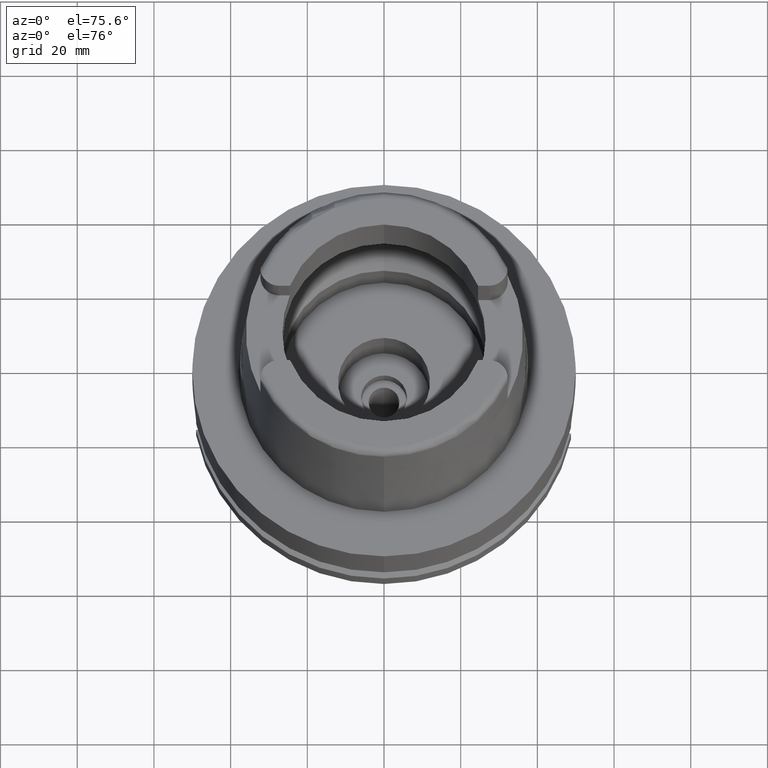
[diagram: clean part render]
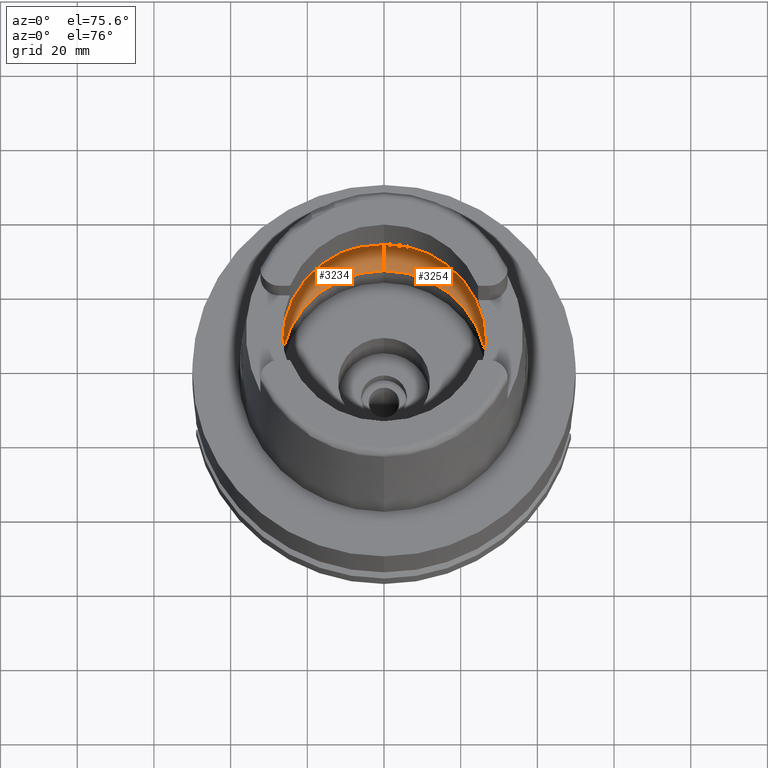
[diagram: same view with one multi-face feature highlighted, each face labeled with its STEP entity id]
A machine part, auxiliary view. The highlighted faces form ONE feature: a constant-radius fillet chain: 2 tangent blend faces with common blend radius 12 mm. The faces share edges in the B-rep.
Their STEP definitions:
[1] entity #3254 (Torus):
#664=CARTESIAN_POINT('',(0.E0,-1.95E1,9.496624327026E0));
#665=DIRECTION('',(-1.E0,0.E0,0.E0));
#666=DIRECTION('',(0.E0,-6.166666666667E-1,-7.872243785746E-1));
#667=AXIS2_PLACEMENT_3D('',#664,#665,#666);
#680=CARTESIAN_POINT('',(3.148971910754E1,0.E0,9.E0));
#681=CARTESIAN_POINT('',(3.148971910754E1,-2.740581905778E-1,9.E0));
#682=CARTESIAN_POINT('',(3.148416870589E1,-8.215767162346E-1,9.037592982540E0));
#683=CARTESIAN_POINT('',(3.145842593441E1,-1.626281815418E0,9.205228751563E0));
#684=CARTESIAN_POINT('',(3.142817044753E1,-2.140719982791E0,9.388291400974E0));
#685=CARTESIAN_POINT('',(3.140918884336E1,-2.390158196044E0,9.496624327026E0));
#690=CARTESIAN_POINT('',(0.E0,0.E0,9.496624327026E0));
#691=DIRECTION('',(0.E0,0.E0,-1.E0));
#692=DIRECTION('',(9.971171061384E-1,-7.587803796965E-2,0.E0));
#693=AXIS2_PLACEMENT_3D('',#690,#691,#692);
#698=CARTESIAN_POINT('',(0.E0,0.E0,4.993178413033E-2));
#699=DIRECTION('',(0.E0,0.E0,1.E0));
#700=DIRECTION('',(0.E0,-1.E0,0.E0));
#701=AXIS2_PLACEMENT_3D('',#698,#699,#700);
#706=CARTESIAN_POINT('',(0.E0,1.95E1,9.496624327026E0));
#707=DIRECTION('',(1.E0,0.E0,0.E0));
#708=DIRECTION('',(0.E0,6.166666666667E-1,-7.872243785746E-1));
#709=AXIS2_PLACEMENT_3D('',#706,#707,#708);
#714=CARTESIAN_POINT('',(0.E0,0.E0,9.496624327026E0));
#715=DIRECTION('',(0.E0,0.E0,-1.E0));
#716=DIRECTION('',(0.E0,1.E0,0.E0));
#717=AXIS2_PLACEMENT_3D('',#714,#715,#716);
#722=CARTESIAN_POINT('',(3.140918884336E1,2.390158196044E0,9.496624327026E0));
#723=CARTESIAN_POINT('',(3.142817017765E1,2.140723529313E0,9.388292941256E0));
#724=CARTESIAN_POINT('',(3.145842559873E1,1.626290467951E0,9.205230879486E0));
#725=CARTESIAN_POINT('',(3.148416885824E1,8.215724231083E-1,9.037592008852E0));
#726=CARTESIAN_POINT('',(3.148971910754E1,2.740562451419E-1,9.E0));
#727=CARTESIAN_POINT('',(3.148971910754E1,0.E0,9.E0));
#739=CARTESIAN_POINT('',(3.140918884336E1,-2.390158196044E0,9.496624327026E0));
#770=CARTESIAN_POINT('',(3.140918884336E1,2.390158196044E0,9.496624327026E0));
#2549=CARTESIAN_POINT('',(0.E0,-3.15E1,9.496624327026E0));
#2550=VERTEX_POINT('',#2549);
#2551=CARTESIAN_POINT('',(0.E0,3.15E1,9.496624327026E0));
#2552=VERTEX_POINT('',#2551);
#2557=VERTEX_POINT('',#739);
#2559=VERTEX_POINT('',#680);
#2560=VERTEX_POINT('',#770);
#2561=CARTESIAN_POINT('',(0.E0,2.69E1,4.993178413034E-2));
#2562=VERTEX_POINT('',#2561);
#2563=CARTESIAN_POINT('',(0.E0,-2.69E1,4.993178413032E-2));
#2564=VERTEX_POINT('',#2563);
#3235=CARTESIAN_POINT('',(0.E0,0.E0,9.496624327026E0));
#3236=DIRECTION('',(0.E0,0.E0,1.E0));
#3237=DIRECTION('',(0.E0,1.E0,0.E0));
#3238=AXIS2_PLACEMENT_3D('',#3235,#3236,#3237);
#3239=TOROIDAL_SURFACE('',#3238,1.95E1,1.2E1);
#3241=ORIENTED_EDGE('',*,*,#3240,.T.);
#3243=ORIENTED_EDGE('',*,*,#3242,.T.);
#3244=ORIENTED_EDGE('',*,*,#3229,.F.);
#3246=ORIENTED_EDGE('',*,*,#3245,.T.);
#3247=ORIENTED_EDGE('',*,*,#3225,.T.);
#3249=ORIENTED_EDGE('',*,*,#3248,.T.);
#3251=ORIENTED_EDGE('',*,*,#3250,.T.);
#3252=EDGE_LOOP('',(#3241,#3243,#3244,#3246,#3247,#3249,#3251));
#3253=FACE_OUTER_BOUND('',#3252,.F.);
#668=CIRCLE('',#667,1.2E1);
#686=B_SPLINE_CURVE_WITH_KNOTS('',3,(#680,#681,#682,#683,#684,#685),
.UNSPECIFIED.,.F.,.F.,(4,1,1,4),(0.E0,3.333333333333E-1,6.666666666667E-1,1.E0),
.UNSPECIFIED.);
#694=CIRCLE('',#693,3.15E1);
#702=CIRCLE('',#701,2.69E1);
#710=CIRCLE('',#709,1.2E1);
#718=CIRCLE('',#717,3.15E1);
#728=B_SPLINE_CURVE_WITH_KNOTS('',3,(#722,#723,#724,#725,#726,#727),
.UNSPECIFIED.,.F.,.F.,(4,1,1,4),(0.E0,3.333333333333E-1,6.666666666667E-1,1.E0),
.UNSPECIFIED.);
#3225=EDGE_CURVE('',#2562,#2552,#710,.T.);
#3229=EDGE_CURVE('',#2564,#2550,#668,.T.);
#3240=EDGE_CURVE('',#2559,#2557,#686,.T.);
#3242=EDGE_CURVE('',#2557,#2550,#694,.T.);
#3245=EDGE_CURVE('',#2564,#2562,#702,.T.);
#3248=EDGE_CURVE('',#2552,#2560,#718,.T.);
#3250=EDGE_CURVE('',#2560,#2559,#728,.T.);
#3254=ADVANCED_FACE('',(#3253),#3239,.F.);
[2] entity #3234 (Torus):
#584=CARTESIAN_POINT('',(-3.140918884336E1,-2.390158196044E0,9.496624327026E0));
#628=CARTESIAN_POINT('',(-3.140918884336E1,-2.390158196044E0,9.496624327026E0));
#629=CARTESIAN_POINT('',(-3.142817048744E1,-2.140719458354E0,9.388291173208E0));
#630=CARTESIAN_POINT('',(-3.145842599790E1,-1.626280530192E0,9.205228353213E0));
#631=CARTESIAN_POINT('',(-3.148416873543E1,-8.215750979197E-1,
9.037592781645E0));
#632=CARTESIAN_POINT('',(-3.148971910754E1,-2.740574929314E-1,9.E0));
#633=CARTESIAN_POINT('',(-3.148971910754E1,0.E0,9.E0));
#638=CARTESIAN_POINT('',(-3.148971910754E1,0.E0,9.E0));
#639=CARTESIAN_POINT('',(-3.148971910754E1,2.740569386345E-1,9.E0));
#640=CARTESIAN_POINT('',(-3.148416882895E1,8.215740320397E-1,9.037592208076E0));
#641=CARTESIAN_POINT('',(-3.145842553504E1,1.626291759550E0,9.205231279179E0));
#642=CARTESIAN_POINT('',(-3.142817013754E1,2.140724056368E0,9.388293170160E0));
#643=CARTESIAN_POINT('',(-3.140918884336E1,2.390158196044E0,9.496624327026E0));
#648=CARTESIAN_POINT('',(0.E0,0.E0,9.496624327026E0));
#649=DIRECTION('',(0.E0,0.E0,-1.E0));
#650=DIRECTION('',(-9.971171061384E-1,7.587803796965E-2,0.E0));
#651=AXIS2_PLACEMENT_3D('',#648,#649,#650);
#656=CARTESIAN_POINT('',(0.E0,0.E0,4.993178413032E-2));
#657=DIRECTION('',(0.E0,0.E0,1.E0));
#658=DIRECTION('',(0.E0,1.E0,0.E0));
#659=AXIS2_PLACEMENT_3D('',#656,#657,#658);
#664=CARTESIAN_POINT('',(0.E0,-1.95E1,9.496624327026E0));
#665=DIRECTION('',(-1.E0,0.E0,0.E0));
#666=DIRECTION('',(0.E0,-6.166666666667E-1,-7.872243785746E-1));
#667=AXIS2_PLACEMENT_3D('',#664,#665,#666);
#672=CARTESIAN_POINT('',(0.E0,0.E0,9.496624327026E0));
#673=DIRECTION('',(0.E0,0.E0,-1.E0));
#674=DIRECTION('',(0.E0,-1.E0,0.E0));
#675=AXIS2_PLACEMENT_3D('',#672,#673,#674);
#706=CARTESIAN_POINT('',(0.E0,1.95E1,9.496624327026E0));
#707=DIRECTION('',(1.E0,0.E0,0.E0));
#708=DIRECTION('',(0.E0,6.166666666667E-1,-7.872243785746E-1));
#709=AXIS2_PLACEMENT_3D('',#706,#707,#708);
#2548=VERTEX_POINT('',#584);
#2549=CARTESIAN_POINT('',(0.E0,-3.15E1,9.496624327026E0));
#2550=VERTEX_POINT('',#2549);
#2551=CARTESIAN_POINT('',(0.E0,3.15E1,9.496624327026E0));
#2552=VERTEX_POINT('',#2551);
#2553=CARTESIAN_POINT('',(-3.140918884336E1,2.390158196044E0,9.496624327026E0));
#2554=VERTEX_POINT('',#2553);
#2555=CARTESIAN_POINT('',(-3.148971910754E1,0.E0,9.E0));
#2556=VERTEX_POINT('',#2555);
#2561=CARTESIAN_POINT('',(0.E0,2.69E1,4.993178413034E-2));
#2562=VERTEX_POINT('',#2561);
#2563=CARTESIAN_POINT('',(0.E0,-2.69E1,4.993178413032E-2));
#2564=VERTEX_POINT('',#2563);
#3217=CARTESIAN_POINT('',(0.E0,0.E0,9.496624327026E0));
#3218=DIRECTION('',(0.E0,0.E0,1.E0));
#3219=DIRECTION('',(0.E0,1.E0,0.E0));
#3220=AXIS2_PLACEMENT_3D('',#3217,#3218,#3219);
#3221=TOROIDAL_SURFACE('',#3220,1.95E1,1.2E1);
#3222=ORIENTED_EDGE('',*,*,#3198,.T.);
#3223=ORIENTED_EDGE('',*,*,#3209,.T.);
#3224=ORIENTED_EDGE('',*,*,#3180,.T.);
#3226=ORIENTED_EDGE('',*,*,#3225,.F.);
#3228=ORIENTED_EDGE('',*,*,#3227,.T.);
#3230=ORIENTED_EDGE('',*,*,#3229,.T.);
#3231=ORIENTED_EDGE('',*,*,#3173,.T.);
#3232=EDGE_LOOP('',(#3222,#3223,#3224,#3226,#3228,#3230,#3231));
#3233=FACE_OUTER_BOUND('',#3232,.F.);
#634=B_SPLINE_CURVE_WITH_KNOTS('',3,(#628,#629,#630,#631,#632,#633),
.UNSPECIFIED.,.F.,.F.,(4,1,1,4),(0.E0,3.333333333333E-1,6.666666666667E-1,1.E0),
.UNSPECIFIED.);
#644=B_SPLINE_CURVE_WITH_KNOTS('',3,(#638,#639,#640,#641,#642,#643),
.UNSPECIFIED.,.F.,.F.,(4,1,1,4),(0.E0,3.333333333333E-1,6.666666666667E-1,1.E0),
.UNSPECIFIED.);
#652=CIRCLE('',#651,3.15E1);
#660=CIRCLE('',#659,2.69E1);
#668=CIRCLE('',#667,1.2E1);
#676=CIRCLE('',#675,3.15E1);
#710=CIRCLE('',#709,1.2E1);
#3173=EDGE_CURVE('',#2550,#2548,#676,.T.);
#3180=EDGE_CURVE('',#2554,#2552,#652,.T.);
#3198=EDGE_CURVE('',#2548,#2556,#634,.T.);
#3209=EDGE_CURVE('',#2556,#2554,#644,.T.);
#3225=EDGE_CURVE('',#2562,#2552,#710,.T.);
#3227=EDGE_CURVE('',#2562,#2564,#660,.T.);
#3229=EDGE_CURVE('',#2564,#2550,#668,.T.);
#3234=ADVANCED_FACE('',(#3233),#3221,.F.);